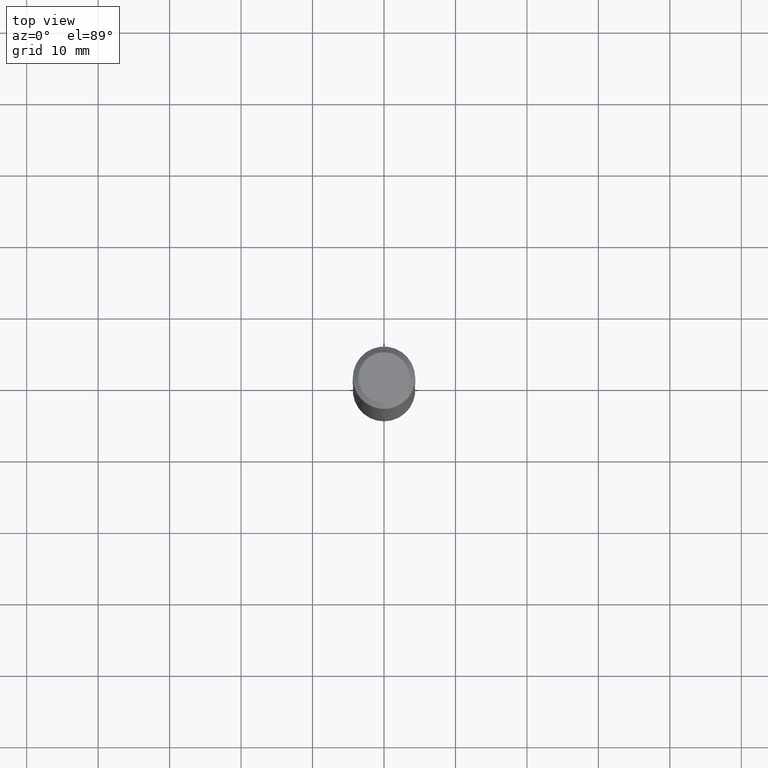
[diagram: clean part render]
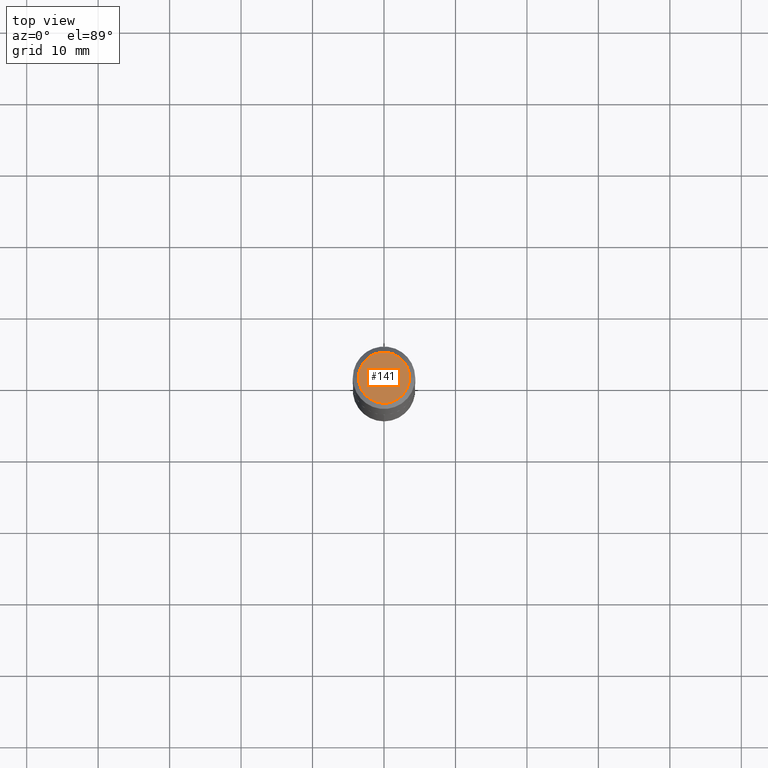
[diagram: same view with one face highlighted and labeled with its STEP entity id]
A machine part, top view. The second image highlights one B-rep face of the part: STEP entity #141.
In plain terms, the highlighted planar face has unit normal (0, -0, -1).
Its self-contained STEP definition (entity closure, byte-faithful):
#10 = CARTESIAN_POINT ( 'NONE',  ( -0.1406499999999999695, 1.036708096535996774E-15, 2.939152317883048057E-19 ) ) ;
#15 = ORIENTED_EDGE ( 'NONE', *, *, #36, .T. ) ;
#16 = CARTESIAN_POINT ( 'NONE',  ( -7.187605310182365995E-48, 1.026199547015271031E-33, 2.939152317953640130E-19 ) ) ;
#36 = EDGE_CURVE ( 'NONE', #343, #61, #254, .T. ) ;
#61 = VERTEX_POINT ( 'NONE', #357 ) ;
#88 = PLANE ( 'NONE',  #178 ) ;
#103 = DIRECTION ( 'NONE',  ( -2.445468806185136597E-29, 3.491481338843145583E-15, 1.000000000000000000 ) ) ;
#118 = FACE_OUTER_BOUND ( 'NONE', #259, .T. ) ;
#141 = ADVANCED_FACE ( 'NONE', ( #118 ), #88, .F. ) ;
#170 = CARTESIAN_POINT ( 'NONE',  ( -7.187605310182365995E-48, 1.026199547015271031E-33, 2.939152317953640130E-19 ) ) ;
#178 = AXIS2_PLACEMENT_3D ( 'NONE', #180, #189, #182 ) ;
#180 = CARTESIAN_POINT ( 'NONE',  ( -3.593802655091182997E-48, 5.130997735076355153E-34, 1.469576158976820065E-19 ) ) ;
#182 = DIRECTION ( 'NONE',  ( -1.000000000000000000, 6.982962677686265922E-15, -4.876176775795935793E-29 ) ) ;
#189 = DIRECTION ( 'NONE',  ( 2.438088387897960049E-29, -3.491481338843145188E-15, -1.000000000000000000 ) ) ;
#220 = DIRECTION ( 'NONE',  ( 1.000000000000000000, -6.982962677686266711E-15, 4.876175800840154318E-29 ) ) ;
#254 = CIRCLE ( 'NONE', #329, 0.1406499999999999695 ) ;
#259 = EDGE_LOOP ( 'NONE', ( #15, #375 ) ) ;
#261 = DIRECTION ( 'NONE',  ( 1.000000000000000000, -6.982962677686266711E-15, 4.876175800840154318E-29 ) ) ;
#319 = DIRECTION ( 'NONE',  ( -2.445468806185136597E-29, 3.491481338843145583E-15, 1.000000000000000000 ) ) ;
#329 = AXIS2_PLACEMENT_3D ( 'NONE', #170, #319, #261 ) ;
#343 = VERTEX_POINT ( 'NONE', #10 ) ;
#347 = AXIS2_PLACEMENT_3D ( 'NONE', #16, #103, #220 ) ;
#348 = CIRCLE ( 'NONE', #347, 0.1406499999999999695 ) ;
#357 = CARTESIAN_POINT ( 'NONE',  ( 0.1406499999999999695, -1.126678720521170652E-15, 2.939152318027373395E-19 ) ) ;
#375 = ORIENTED_EDGE ( 'NONE', *, *, #380, .T. ) ;
#380 = EDGE_CURVE ( 'NONE', #61, #343, #348, .T. ) ;